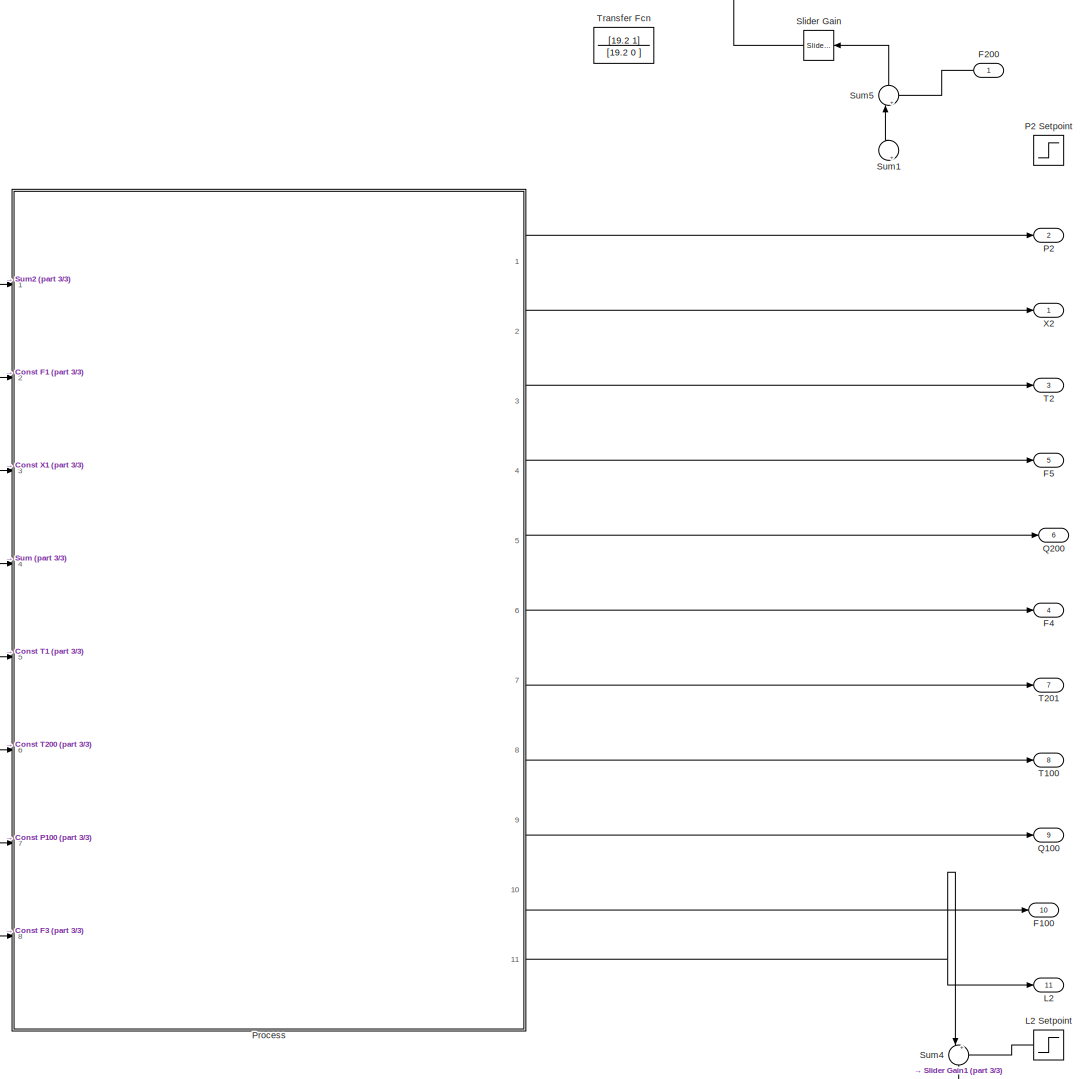
[diagram: root canvas - part 1/3, center side, full height]
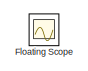
[diagram: root canvas - part 2/3, top right region]
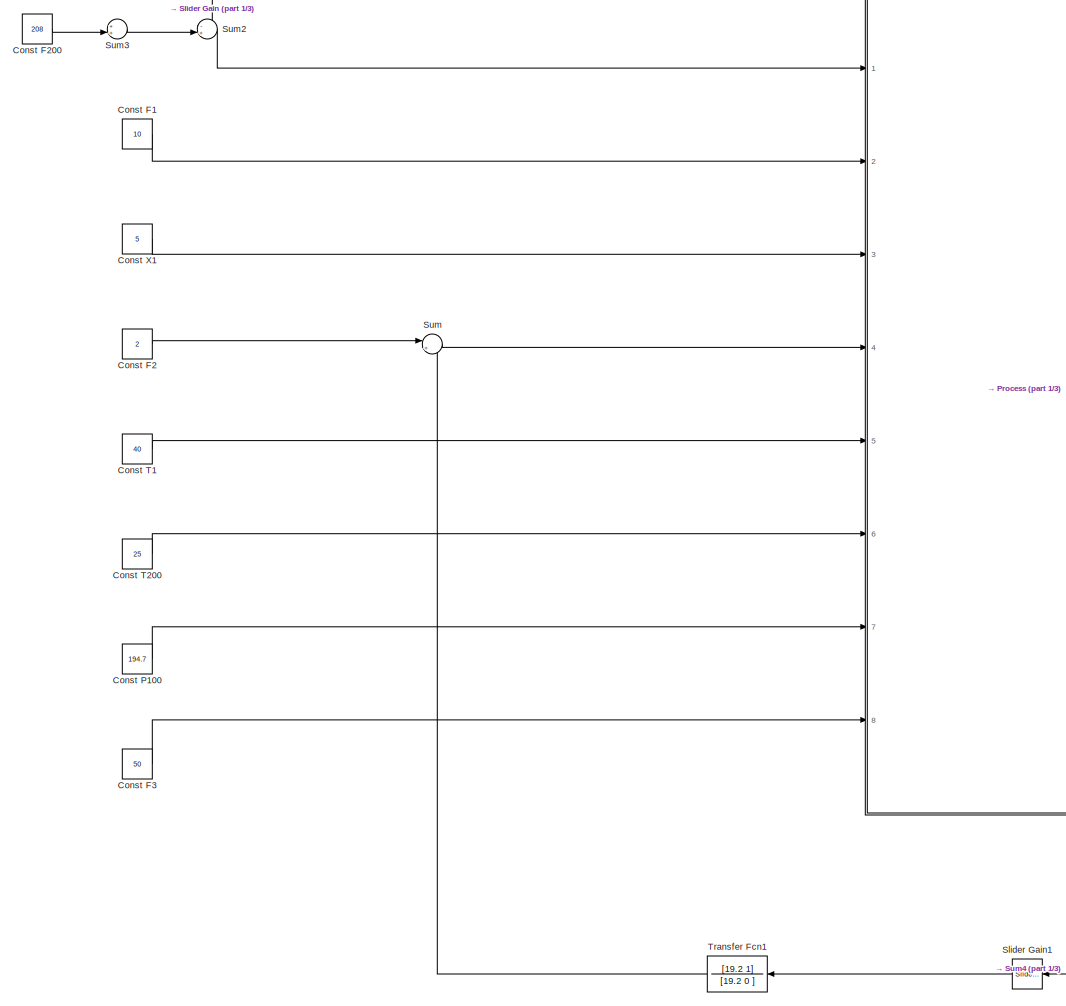
[diagram: root canvas - part 3/3, left side, full height]
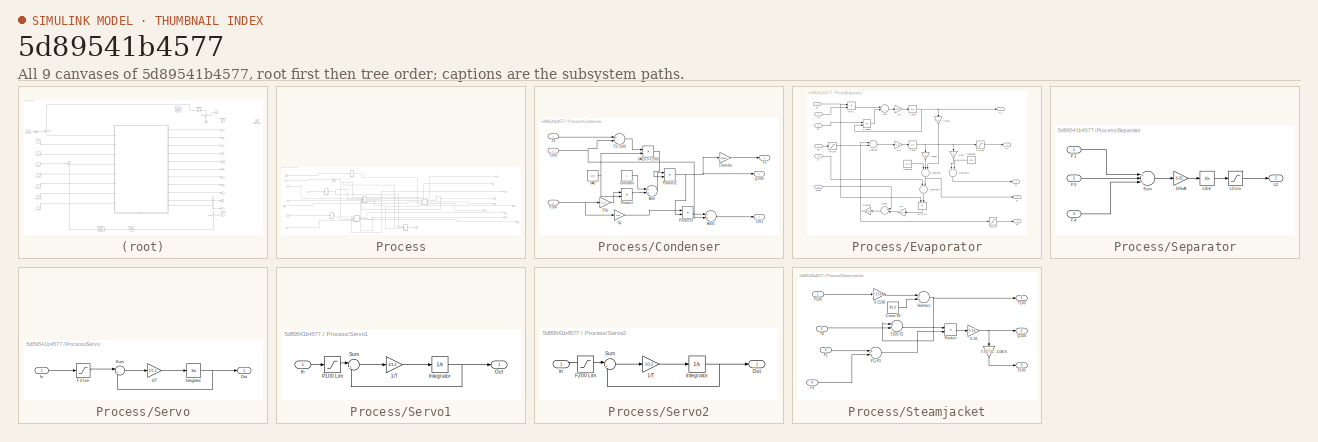
[diagram: thumbnail index - all 9 canvases of the model, root first then tree order]
MODEL slx_5d89541b4577
KIND model
CONFIG AbsTol = auto
CONFIG EnableMultiTasking = off
CONFIG FixedStep = auto
CONFIG MaxStep = auto
CONFIG MinStep = auto
CONFIG RelTol = 1e-3
CONFIG SampleTimeConstraint = Unconstrained
CONFIG Solver = VariableStepAuto
CONFIG SolverName = VariableStepAuto
CONFIG StartTime = 0.0
CONFIG StopTime = 200
BLOCK [Constant] Const F1
  Value = 10
BLOCK [Constant] Const F2
  Value = 2
BLOCK [Constant] Const F200
  Value = 208
BLOCK [Constant] Const F3
  Value = 50
BLOCK [Constant] Const P100
  Value = 194.7
BLOCK [Constant] Const T1
  Value = 40
BLOCK [Constant] Const T200
  Value = 25
BLOCK [Constant] Const X1
  Value = 5
BLOCK [Outport] F100
  IconDisplay = Port number
  Port = 10
BLOCK [Inport] F200
  IconDisplay = Port number
BLOCK [Outport] F4
  IconDisplay = Port number
  Port = 4
BLOCK [Outport] F5
  IconDisplay = Port number
  Port = 5
BLOCK [Scope] Floating Scope
  Floating = on
  NumInputPorts = 1
  Ports = []
  ScopeSpecificationString = Simulink.scopes.TimeScopeBlockCfg('CurrentConfiguration', extmgr.ConfigurationSet(extmgr.Configuration('Core','General UI',true),extmgr.Configuration('Core','Source UI',true),extmgr.Configuration('Sources','WiredSimulink',true),extmgr.Configuration('Visuals','Time Domain',true,'SerializedDisplays',{struct('MinYLimReal','0.99914','MaxYLimReal','1.0001','YLabelReal','','MinYLimMag','0.99914','MaxYLi...<+1431ch>
BLOCK [Outport] L2
  IconDisplay = Port number
  Port = 11
BLOCK [Step] L2 Setpoint
  Before = 1
  SampleTime = 0
BLOCK [Outport] P2
  IconDisplay = Port number
  Port = 2
BLOCK [Step] P2 Setpoint
  After = 50.5
  Before = 50.5
  SampleTime = 0
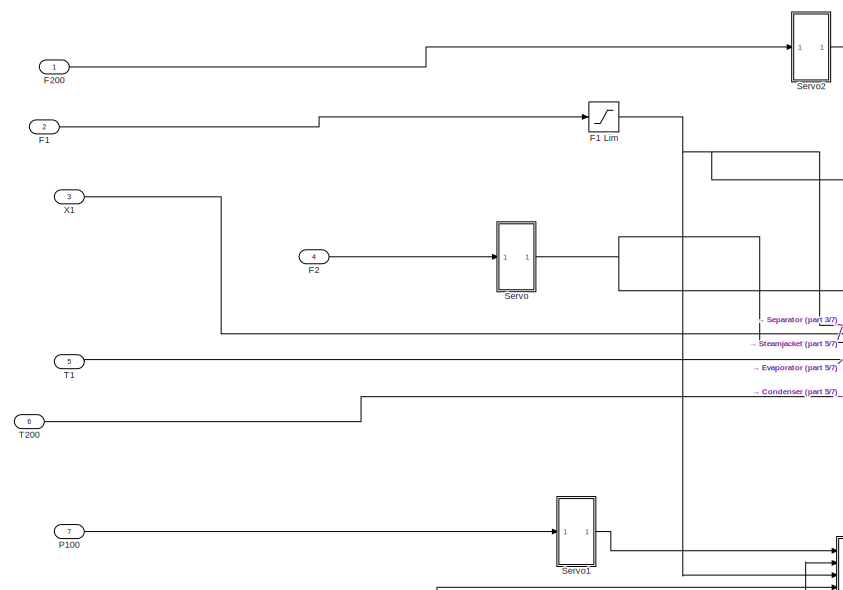
[diagram: Process - part 1/7, left side, full height]
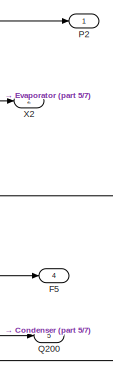
[diagram: Process - part 2/7, middle right region]
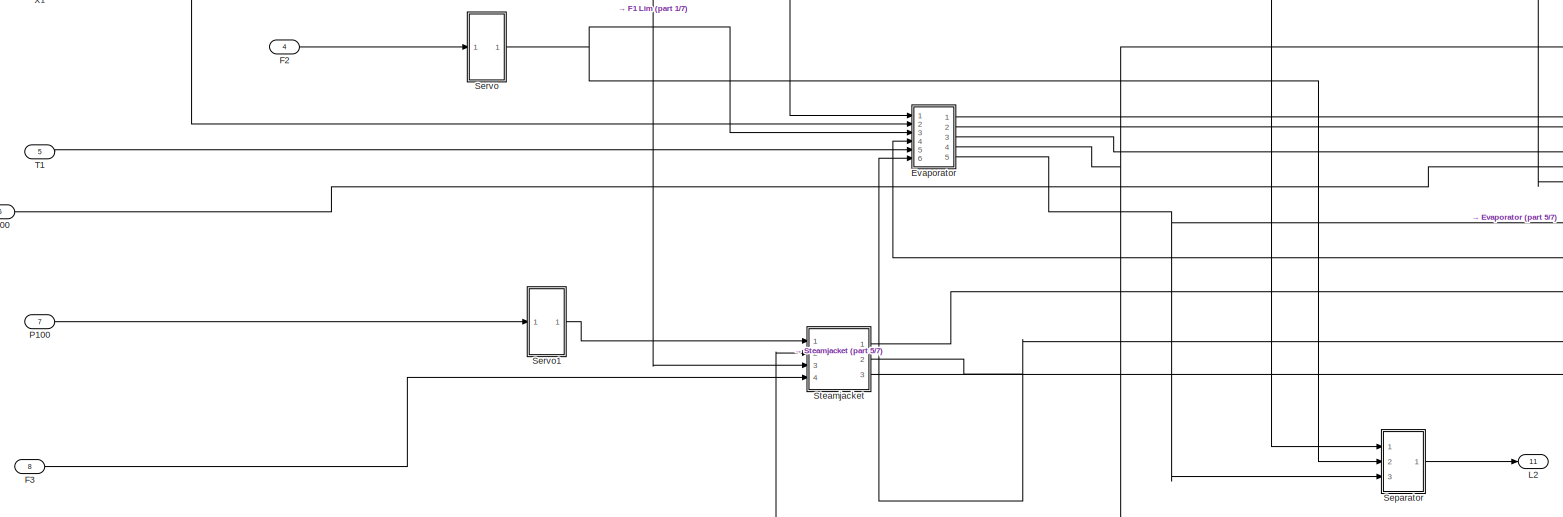
[diagram: Process - part 3/7, middle left region]
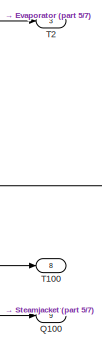
[diagram: Process - part 4/7, middle right region]
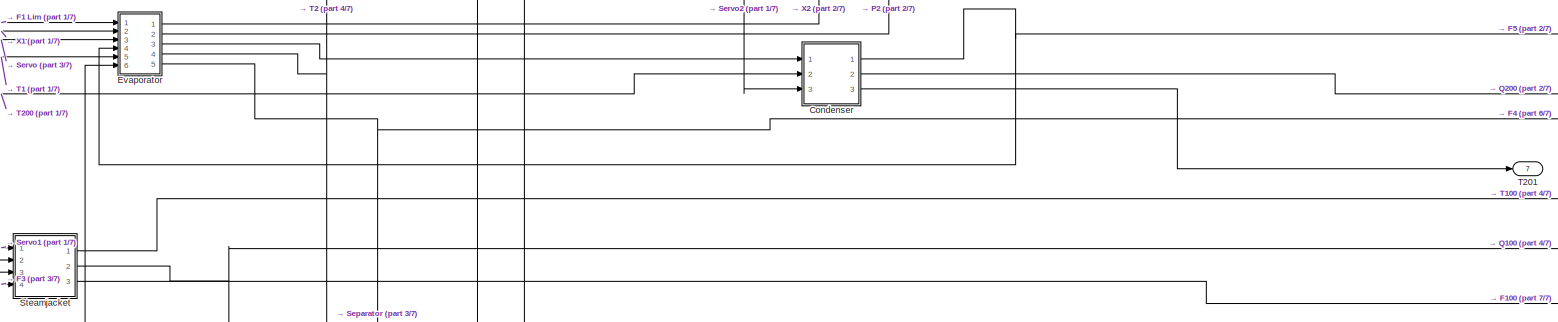
[diagram: Process - part 5/7, central region]
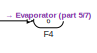
[diagram: Process - part 6/7, middle right region]
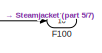
[diagram: Process - part 7/7, bottom right region]
BLOCK [SubSystem] Process
  Ports = [8, 11]
  RequestExecContextInheritance = off
  Variant = off
BLOCK [SubSystem] Process/Condenser
  Ports = [3, 3]
  RequestExecContextInheritance = off
  Variant = off
BLOCK [Gain] Process/Condenser/1//lamda
  Gain = 0.02597402597
  OutDataTypeStr = Inherit: Inherit via internal rule
  ParamDataTypeStr = Inherit: Inherit via internal rule
  SaturateOnIntegerOverflow = off
BLOCK [Gain] Process/Condenser/2Cp
  Gain = 0.14
  OutDataTypeStr = Inherit: Inherit via internal rule
  ParamDataTypeStr = Inherit: Inherit via internal rule
  SaturateOnIntegerOverflow = off
BLOCK [Sum] Process/Condenser/Add
  InputSameDT = off
  OutDataTypeStr = Inherit: Inherit via internal rule
  Ports = [2, 1]
  SaturateOnIntegerOverflow = off
BLOCK [Sum] Process/Condenser/Add1
  InputSameDT = off
  OutDataTypeStr = Inherit: Inherit via internal rule
  Ports = [2, 1]
  SaturateOnIntegerOverflow = off
BLOCK [Constant] Process/Condenser/Constant
BLOCK [Gain] Process/Condenser/Cp
  Gain = 0.07
  OutDataTypeStr = Inherit: Inherit via internal rule
  ParamDataTypeStr = Inherit: Inherit via internal rule
  SaturateOnIntegerOverflow = off
BLOCK [Inport] Process/Condenser/F200
  IconDisplay = Port number
  Port = 3
BLOCK [Outport] Process/Condenser/F5
  IconDisplay = Port number
BLOCK [Product] Process/Condenser/Product
  InputSameDT = off
  Inputs = /*
  OutDataTypeStr = Inherit: Inherit via internal rule
  Ports = [2, 1]
  RndMeth = Floor
  SaturateOnIntegerOverflow = off
BLOCK [Product] Process/Condenser/Product2
  InputSameDT = off
  Inputs = /*
  OutDataTypeStr = Inherit: Inherit via internal rule
  Ports = [2, 1]
  RndMeth = Floor
  SaturateOnIntegerOverflow = off
BLOCK [Product] Process/Condenser/Product3
  InputSameDT = off
  Inputs = /*
  OutDataTypeStr = Inherit: Inherit via internal rule
  Ports = [2, 1]
  RndMeth = Floor
  SaturateOnIntegerOverflow = off
BLOCK [Outport] Process/Condenser/Q200
  IconDisplay = Port number
  Port = 2
BLOCK [Inport] Process/Condenser/T200
  IconDisplay = Port number
  Port = 2
BLOCK [Outport] Process/Condenser/T201
  IconDisplay = Port number
  Port = 3
BLOCK [Inport] Process/Condenser/T3
  IconDisplay = Port number
BLOCK [Sum] Process/Condenser/T3-T200
  InputSameDT = off
  Inputs = +-
  OutDataTypeStr = Inherit: Inherit via internal rule
  Ports = [2, 1]
  SaturateOnIntegerOverflow = off
BLOCK [Constant] Process/Condenser/UA2
  Value = 6.84
BLOCK [Product] Process/Condenser/UA2(T3-T200)
  InputSameDT = off
  OutDataTypeStr = Inherit: Inherit via internal rule
  Ports = [2, 1]
  RndMeth = Floor
  SaturateOnIntegerOverflow = off
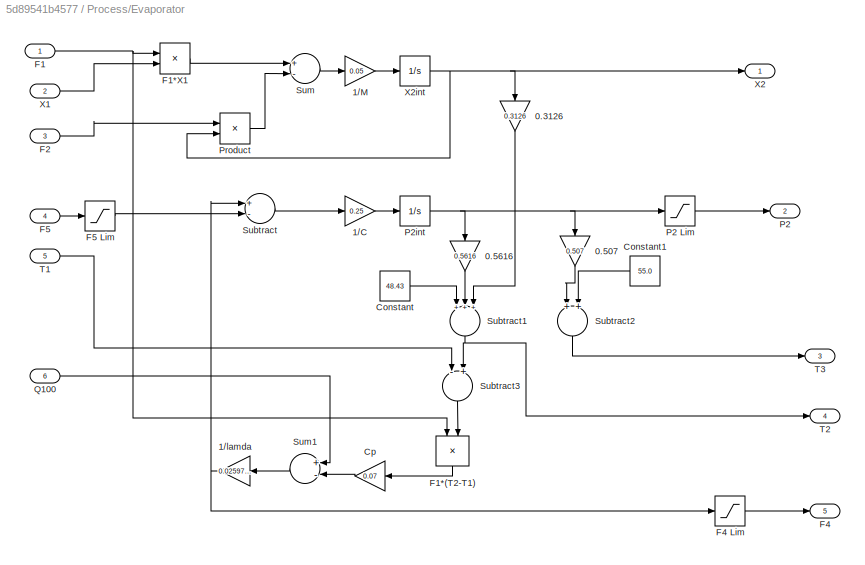
BLOCK [SubSystem] Process/Evaporator
  Ports = [6, 5]
  RequestExecContextInheritance = off
  Variant = off
BLOCK [Gain] Process/Evaporator/0.3126
  Gain = 0.3126
  OutDataTypeStr = Inherit: Inherit via internal rule
  ParamDataTypeStr = Inherit: Inherit via internal rule
  SaturateOnIntegerOverflow = off
BLOCK [Gain] Process/Evaporator/0.507
  Gain = 0.507
  OutDataTypeStr = Inherit: Inherit via internal rule
  ParamDataTypeStr = Inherit: Inherit via internal rule
  SaturateOnIntegerOverflow = off
BLOCK [Gain] Process/Evaporator/0.5616
  Gain = 0.5616
  OutDataTypeStr = Inherit: Inherit via internal rule
  ParamDataTypeStr = Inherit: Inherit via internal rule
  SaturateOnIntegerOverflow = off
BLOCK [Gain] Process/Evaporator/1//C
  Gain = 0.25
  OutDataTypeStr = Inherit: Inherit via internal rule
  ParamDataTypeStr = Inherit: Inherit via internal rule
  SaturateOnIntegerOverflow = off
BLOCK [Gain] Process/Evaporator/1//M
  Gain = 0.05
  OutDataTypeStr = Inherit: Inherit via internal rule
  ParamDataTypeStr = Inherit: Inherit via internal rule
  SaturateOnIntegerOverflow = off
BLOCK [Gain] Process/Evaporator/1//lamda
  Gain = 0.02597402597
  OutDataTypeStr = Inherit: Inherit via internal rule
  ParamDataTypeStr = Inherit: Inherit via internal rule
  SaturateOnIntegerOverflow = off
BLOCK [Constant] Process/Evaporator/Constant
  Value = 48.43
BLOCK [Constant] Process/Evaporator/Constant1
  Value = 55.0
BLOCK [Gain] Process/Evaporator/Cp
  Gain = 0.07
  OutDataTypeStr = Inherit: Inherit via internal rule
  ParamDataTypeStr = Inherit: Inherit via internal rule
  SaturateOnIntegerOverflow = off
BLOCK [Inport] Process/Evaporator/F1
  IconDisplay = Port number
BLOCK [Product] Process/Evaporator/F1*(T2-T1)
  InputSameDT = off
  OutDataTypeStr = Inherit: Inherit via internal rule
  Ports = [2, 1]
  RndMeth = Floor
  SaturateOnIntegerOverflow = off
BLOCK [Product] Process/Evaporator/F1*X1
  InputSameDT = off
  OutDataTypeStr = Inherit: Inherit via internal rule
  Ports = [2, 1]
  RndMeth = Floor
  SaturateOnIntegerOverflow = off
BLOCK [Inport] Process/Evaporator/F2
  IconDisplay = Port number
  Port = 3
BLOCK [Outport] Process/Evaporator/F4
  IconDisplay = Port number
  Port = 5
BLOCK [Saturate] Process/Evaporator/F4 Lim
  InputPortMap = u0
  LowerLimit = 0
  Ports = [1, 1]
  UpperLimit = 16
BLOCK [Inport] Process/Evaporator/F5
  IconDisplay = Port number
  Port = 4
BLOCK [Saturate] Process/Evaporator/F5 Lim
  InputPortMap = u0
  LowerLimit = 0
  Ports = [1, 1]
  UpperLimit = 16
BLOCK [Outport] Process/Evaporator/P2
  IconDisplay = Port number
  Port = 2
BLOCK [Saturate] Process/Evaporator/P2 Lim
  InputPortMap = u0
  LowerLimit = 0
  Ports = [1, 1]
  UpperLimit = 100
BLOCK [Integrator] Process/Evaporator/P2int
  InitialCondition = 50.5
  Ports = [1, 1]
BLOCK [Product] Process/Evaporator/Product
  InputSameDT = off
  OutDataTypeStr = Inherit: Inherit via internal rule
  Ports = [2, 1]
  RndMeth = Floor
  SaturateOnIntegerOverflow = off
BLOCK [Inport] Process/Evaporator/Q100
  IconDisplay = Port number
  Port = 6
BLOCK [Sum] Process/Evaporator/Subtract
  InputSameDT = off
  Inputs = +-
  OutDataTypeStr = Inherit: Inherit via internal rule
  Ports = [2, 1]
  SaturateOnIntegerOverflow = off
BLOCK [Sum] Process/Evaporator/Subtract1
  InputSameDT = off
  Inputs = +++
  OutDataTypeStr = Inherit: Inherit via internal rule
  Ports = [3, 1]
  SaturateOnIntegerOverflow = off
BLOCK [Sum] Process/Evaporator/Subtract2
  InputSameDT = off
  OutDataTypeStr = Inherit: Inherit via internal rule
  Ports = [2, 1]
  SaturateOnIntegerOverflow = off
BLOCK [Sum] Process/Evaporator/Subtract3
  InputSameDT = off
  Inputs = -+
  OutDataTypeStr = Inherit: Inherit via internal rule
  Ports = [2, 1]
  SaturateOnIntegerOverflow = off
BLOCK [Sum] Process/Evaporator/Sum
  InputSameDT = off
  Inputs = +-
  OutDataTypeStr = Inherit: Inherit via internal rule
  Ports = [2, 1]
  SaturateOnIntegerOverflow = off
BLOCK [Sum] Process/Evaporator/Sum1
  InputSameDT = off
  Inputs = +-
  OutDataTypeStr = Inherit: Inherit via internal rule
  Ports = [2, 1]
  SaturateOnIntegerOverflow = off
BLOCK [Inport] Process/Evaporator/T1
  IconDisplay = Port number
  Port = 5
BLOCK [Outport] Process/Evaporator/T2
  IconDisplay = Port number
  Port = 4
BLOCK [Outport] Process/Evaporator/T3
  IconDisplay = Port number
  Port = 3
BLOCK [Inport] Process/Evaporator/X1
  IconDisplay = Port number
  Port = 2
BLOCK [Outport] Process/Evaporator/X2
  IconDisplay = Port number
BLOCK [Integrator] Process/Evaporator/X2int
  InitialCondition = 25
  Ports = [1, 1]
BLOCK [Inport] Process/F1
  IconDisplay = Port number
  Port = 2
BLOCK [Saturate] Process/F1 Lim
  InputPortMap = u0
  LowerLimit = 0
  Ports = [1, 1]
  UpperLimit = 20
BLOCK [Outport] Process/F100
  IconDisplay = Port number
  Port = 10
BLOCK [Inport] Process/F2
  IconDisplay = Port number
  Port = 4
BLOCK [Inport] Process/F200
  IconDisplay = Port number
BLOCK [Inport] Process/F3
  IconDisplay = Port number
  Port = 8
BLOCK [Outport] Process/F4
  IconDisplay = Port number
  Port = 6
BLOCK [Outport] Process/F5
  IconDisplay = Port number
  Port = 4
BLOCK [Outport] Process/L2
  IconDisplay = Port number
  Port = 11
BLOCK [Inport] Process/P100
  IconDisplay = Port number
  Port = 7
BLOCK [Outport] Process/P2
  IconDisplay = Port number
BLOCK [Outport] Process/Q100
  IconDisplay = Port number
  Port = 9
BLOCK [Outport] Process/Q200
  IconDisplay = Port number
  Port = 5
BLOCK [SubSystem] Process/Separator
  Ports = [3, 1]
  RequestExecContextInheritance = off
  Variant = off
BLOCK [Gain] Process/Separator/1//rhoA
  Gain = 0.05
  OutDataTypeStr = Inherit: Inherit via internal rule
  ParamDataTypeStr = Inherit: Inherit via internal rule
  SaturateOnIntegerOverflow = off
BLOCK [Inport] Process/Separator/F1
  IconDisplay = Port number
BLOCK [Inport] Process/Separator/F2
  IconDisplay = Port number
  Port = 2
BLOCK [Inport] Process/Separator/F4
  IconDisplay = Port number
  Port = 3
BLOCK [Outport] Process/Separator/L2
  IconDisplay = Port number
BLOCK [Saturate] Process/Separator/L2 Lim
  InputPortMap = u0
  LowerLimit = 0
  Ports = [1, 1]
  UpperLimit = 2
BLOCK [Integrator] Process/Separator/L2int
  InitialCondition = 1
  Ports = [1, 1]
BLOCK [Sum] Process/Separator/Sum
  InputSameDT = off
  Inputs = +--
  OutDataTypeStr = Inherit: Inherit via internal rule
  Ports = [3, 1]
  SaturateOnIntegerOverflow = off
BLOCK [SubSystem] Process/Servo
  Ports = [1, 1]
  RequestExecContextInheritance = off
  Variant = off
BLOCK [Gain] Process/Servo/1//T
  Gain = 1/1.2
  OutDataTypeStr = Inherit: Inherit via internal rule
  ParamDataTypeStr = Inherit: Inherit via internal rule
  SaturateOnIntegerOverflow = off
BLOCK [Saturate] Process/Servo/F2 Lim
  InputPortMap = u0
  LowerLimit = 0
  Ports = [1, 1]
  UpperLimit = 4
BLOCK [Inport] Process/Servo/In
  IconDisplay = Port number
BLOCK [Integrator] Process/Servo/Integrator
  InitialCondition = 2
  Ports = [1, 1]
BLOCK [Outport] Process/Servo/Out
  IconDisplay = Port number
BLOCK [Sum] Process/Servo/Sum
  IconShape = round
  InputSameDT = off
  Inputs = |+-
  OutDataTypeStr = Inherit: Inherit via internal rule
  Ports = [2, 1]
  SaturateOnIntegerOverflow = off
BLOCK [SubSystem] Process/Servo1
  Ports = [1, 1]
  RequestExecContextInheritance = off
  Variant = off
BLOCK [Gain] Process/Servo1/1//T
  Gain = 1/1.2
  OutDataTypeStr = Inherit: Inherit via internal rule
  ParamDataTypeStr = Inherit: Inherit via internal rule
  SaturateOnIntegerOverflow = off
BLOCK [Inport] Process/Servo1/In
  IconDisplay = Port number
BLOCK [Integrator] Process/Servo1/Integrator
  InitialCondition = 194.7
  Ports = [1, 1]
BLOCK [Outport] Process/Servo1/Out
  IconDisplay = Port number
BLOCK [Saturate] Process/Servo1/P100 Lim
  InputPortMap = u0
  LowerLimit = 0
  Ports = [1, 1]
  UpperLimit = 400
BLOCK [Sum] Process/Servo1/Sum
  IconShape = round
  InputSameDT = off
  Inputs = |+-
  OutDataTypeStr = Inherit: Inherit via internal rule
  Ports = [2, 1]
  SaturateOnIntegerOverflow = off
BLOCK [SubSystem] Process/Servo2
  Ports = [1, 1]
  RequestExecContextInheritance = off
  Variant = off
BLOCK [Gain] Process/Servo2/1//T
  Gain = 1/1.2
  OutDataTypeStr = Inherit: Inherit via internal rule
  ParamDataTypeStr = Inherit: Inherit via internal rule
  SaturateOnIntegerOverflow = off
BLOCK [Saturate] Process/Servo2/F200 Lim
  InputPortMap = u0
  LowerLimit = 0
  Ports = [1, 1]
  UpperLimit = 416
BLOCK [Inport] Process/Servo2/In
  IconDisplay = Port number
BLOCK [Integrator] Process/Servo2/Integrator
  InitialCondition = 208
  Ports = [1, 1]
BLOCK [Outport] Process/Servo2/Out
  IconDisplay = Port number
BLOCK [Sum] Process/Servo2/Sum
  IconShape = round
  InputSameDT = off
  Inputs = |+-
  OutDataTypeStr = Inherit: Inherit via internal rule
  Ports = [2, 1]
  SaturateOnIntegerOverflow = off
BLOCK [SubSystem] Process/Steamjacket
  Ports = [4, 3]
  RequestExecContextInheritance = off
  Variant = off
BLOCK [Gain] Process/Steamjacket/0.1538
  Gain = 0.1538
  OutDataTypeStr = Inherit: Inherit via internal rule
  ParamDataTypeStr = Inherit: Inherit via internal rule
  SaturateOnIntegerOverflow = off
BLOCK [Gain] Process/Steamjacket/0.16
  Gain = 0.16
  OutDataTypeStr = Inherit: Inherit via internal rule
  ParamDataTypeStr = Inherit: Inherit via internal rule
  SaturateOnIntegerOverflow = off
BLOCK [Gain] Process/Steamjacket/1//36.6
  Gain = 0.02732240437
  OutDataTypeStr = Inherit: Inherit via internal rule
  ParamDataTypeStr = Inherit: Inherit via internal rule
  SaturateOnIntegerOverflow = off
BLOCK [Constant] Process/Steamjacket/Const 90
  Value = 90.0
BLOCK [Inport] Process/Steamjacket/F1
  IconDisplay = Port number
  Port = 3
BLOCK [Sum] Process/Steamjacket/F1+F3
  InputSameDT = off
  OutDataTypeStr = Inherit: Inherit via internal rule
  Ports = [2, 1]
  SaturateOnIntegerOverflow = off
BLOCK [Outport] Process/Steamjacket/F100
  IconDisplay = Port number
  Port = 3
BLOCK [Inport] Process/Steamjacket/F3
  IconDisplay = Port number
  Port = 4
BLOCK [Inport] Process/Steamjacket/P100
  IconDisplay = Port number
BLOCK [Product] Process/Steamjacket/Product
  InputSameDT = off
  OutDataTypeStr = Inherit: Inherit via internal rule
  Ports = [2, 1]
  RndMeth = Floor
  SaturateOnIntegerOverflow = off
BLOCK [Outport] Process/Steamjacket/Q100
  IconDisplay = Port number
  Port = 2
BLOCK [Sum] Process/Steamjacket/Subtract
  InputSameDT = off
  OutDataTypeStr = Inherit: Inherit via internal rule
  Ports = [2, 1]
  SaturateOnIntegerOverflow = off
BLOCK [Outport] Process/Steamjacket/T100
  IconDisplay = Port number
BLOCK [Sum] Process/Steamjacket/T100-T2
  InputSameDT = off
  Inputs = +-
  OutDataTypeStr = Inherit: Inherit via internal rule
  Ports = [2, 1]
  SaturateOnIntegerOverflow = off
BLOCK [Inport] Process/Steamjacket/T2
  IconDisplay = Port number
  Port = 2
BLOCK [Inport] Process/T1
  IconDisplay = Port number
  Port = 5
BLOCK [Outport] Process/T100
  IconDisplay = Port number
  Port = 8
BLOCK [Outport] Process/T2
  IconDisplay = Port number
  Port = 3
BLOCK [Inport] Process/T200
  IconDisplay = Port number
  Port = 6
BLOCK [Outport] Process/T201
  IconDisplay = Port number
  Port = 7
BLOCK [Inport] Process/X1
  IconDisplay = Port number
  Port = 3
BLOCK [Outport] Process/X2
  IconDisplay = Port number
  Port = 2
BLOCK [Outport] Q100
  IconDisplay = Port number
  Port = 9
BLOCK [Outport] Q200
  IconDisplay = Port number
  Port = 6
BLOCK [Reference] Slider Gain  REF=simulink/Math
Operations/Slider
Gain
  Ports = [1, 1]
  SourceBlock = simulink/Math\nOperations/Slider\nGain
  SourceProductBaseCode = SL
  SourceProductName = Simulink
  SourceType = Slider Gain
BLOCK [Reference] Slider Gain1  REF=simulink/Math
Operations/Slider
Gain
  Ports = [1, 1]
  SourceBlock = simulink/Math\nOperations/Slider\nGain
  SourceProductBaseCode = SL
  SourceProductName = Simulink
  SourceType = Slider Gain
BLOCK [Sum] Sum
  IconShape = round
  InputSameDT = off
  Inputs = |+-
  OutDataTypeStr = Inherit: Inherit via internal rule
  Ports = [2, 1]
  SaturateOnIntegerOverflow = off
BLOCK [Sum] Sum1
  IconShape = round
  InputSameDT = off
  Inputs = |+-
  OutDataTypeStr = Inherit: Inherit via internal rule
  Ports = [2, 1]
  SaturateOnIntegerOverflow = off
BLOCK [Sum] Sum2
  IconShape = round
  InputSameDT = off
  Inputs = -+|
  OutDataTypeStr = Inherit: Inherit via internal rule
  Ports = [2, 1]
  SaturateOnIntegerOverflow = off
BLOCK [Sum] Sum3
  IconShape = round
  InputSameDT = off
  Inputs = ++|
  OutDataTypeStr = Inherit: Inherit via internal rule
  Ports = [2, 1]
  SaturateOnIntegerOverflow = off
BLOCK [Sum] Sum4
  IconShape = round
  InputSameDT = off
  Inputs = |+-
  OutDataTypeStr = Inherit: Inherit via internal rule
  Ports = [2, 1]
  SaturateOnIntegerOverflow = off
BLOCK [Sum] Sum5
  IconShape = round
  InputSameDT = off
  Inputs = |++
  OutDataTypeStr = Inherit: Inherit via internal rule
  Ports = [2, 1]
  SaturateOnIntegerOverflow = off
BLOCK [Outport] T100
  IconDisplay = Port number
  Port = 8
BLOCK [Outport] T2
  IconDisplay = Port number
  Port = 3
BLOCK [Outport] T201
  IconDisplay = Port number
  Port = 7
BLOCK [TransferFcn] Transfer Fcn
  Denominator = [19.2 0 ]
  Numerator = [19.2 1]
BLOCK [TransferFcn] Transfer Fcn1
  Denominator = [19.2 0 ]
  Numerator = [19.2 1]
BLOCK [Outport] X2
  IconDisplay = Port number
LINE Const F1:1 -> Process:2
LINE Const F200:1 -> Sum3:2
LINE Const F2:1 -> Sum:1
LINE Const F3:1 -> Process:8
LINE Const P100:1 -> Process:7
LINE Const T1:1 -> Process:5
LINE Const T200:1 -> Process:6
LINE Const X1:1 -> Process:3
LINE F200:1 -> Sum5:2
LINE L2 Setpoint:1 -> Sum4:2
LINE Process/Condenser/1//lamda:1 -> Process/Condenser/F5:1
LINE Process/Condenser/2Cp:1 -> Process/Condenser/Product:1
LINE Process/Condenser/Add1:1 -> Process/Condenser/T201:1
LINE Process/Condenser/Add:1 -> Process/Condenser/Product2:1
LINE Process/Condenser/Constant:1 -> Process/Condenser/Add:1
LINE Process/Condenser/Cp:1 -> Process/Condenser/Product3:1
NET Process/Condenser/F200:1 -> Process/Condenser/2Cp:1, Process/Condenser/Cp:1
NET Process/Condenser/Product2:1 -> Process/Condenser/1//lamda:1, Process/Condenser/Product3:2, Process/Condenser/Q200:1
LINE Process/Condenser/Product3:1 -> Process/Condenser/Add1:1
LINE Process/Condenser/Product:1 -> Process/Condenser/Add:2
NET Process/Condenser/T200:1 -> Process/Condenser/Add1:2, Process/Condenser/T3-T200:2
LINE Process/Condenser/T3-T200:1 -> Process/Condenser/UA2(T3-T200):1
LINE Process/Condenser/T3:1 -> Process/Condenser/T3-T200:1
LINE Process/Condenser/UA2(T3-T200):1 -> Process/Condenser/Product2:2
NET Process/Condenser/UA2:1 -> Process/Condenser/Product:2, Process/Condenser/UA2(T3-T200):2
NET Process/Condenser:1 -> Process/Evaporator:4, Process/F5:1
LINE Process/Condenser:2 -> Process/Q200:1
LINE Process/Condenser:3 -> Process/T201:1
LINE Process/Evaporator/0.3126:1 -> Process/Evaporator/Subtract1:3
LINE Process/Evaporator/0.507:1 -> Process/Evaporator/Subtract2:1
LINE Process/Evaporator/0.5616:1 -> Process/Evaporator/Subtract1:2
LINE Process/Evaporator/1//C:1 -> Process/Evaporator/P2int:1
LINE Process/Evaporator/1//M:1 -> Process/Evaporator/X2int:1
NET Process/Evaporator/1//lamda:1 -> Process/Evaporator/F4 Lim:1, Process/Evaporator/Subtract:1
LINE Process/Evaporator/Constant1:1 -> Process/Evaporator/Subtract2:2
LINE Process/Evaporator/Constant:1 -> Process/Evaporator/Subtract1:1
LINE Process/Evaporator/Cp:1 -> Process/Evaporator/Sum1:2
LINE Process/Evaporator/F1*(T2-T1):1 -> Process/Evaporator/Cp:1
LINE Process/Evaporator/F1*X1:1 -> Process/Evaporator/Sum:1
NET Process/Evaporator/F1:1 -> Process/Evaporator/F1*(T2-T1):1, Process/Evaporator/F1*X1:1
LINE Process/Evaporator/F2:1 -> Process/Evaporator/Product:1
LINE Process/Evaporator/F4 Lim:1 -> Process/Evaporator/F4:1
LINE Process/Evaporator/F5 Lim:1 -> Process/Evaporator/Subtract:2
LINE Process/Evaporator/F5:1 -> Process/Evaporator/F5 Lim:1
LINE Process/Evaporator/P2 Lim:1 -> Process/Evaporator/P2:1
NET Process/Evaporator/P2int:1 -> Process/Evaporator/0.507:1, Process/Evaporator/0.5616:1, Process/Evaporator/P2 Lim:1
LINE Process/Evaporator/Product:1 -> Process/Evaporator/Sum:2
LINE Process/Evaporator/Q100:1 -> Process/Evaporator/Sum1:1
NET Process/Evaporator/Subtract1:1 -> Process/Evaporator/Subtract3:2, Process/Evaporator/T2:1
LINE Process/Evaporator/Subtract2:1 -> Process/Evaporator/T3:1
LINE Process/Evaporator/Subtract3:1 -> Process/Evaporator/F1*(T2-T1):2
LINE Process/Evaporator/Subtract:1 -> Process/Evaporator/1//C:1
LINE Process/Evaporator/Sum1:1 -> Process/Evaporator/1//lamda:1
LINE Process/Evaporator/Sum:1 -> Process/Evaporator/1//M:1
LINE Process/Evaporator/T1:1 -> Process/Evaporator/Subtract3:1
LINE Process/Evaporator/X1:1 -> Process/Evaporator/F1*X1:2
NET Process/Evaporator/X2int:1 -> Process/Evaporator/0.3126:1, Process/Evaporator/Product:2, Process/Evaporator/X2:1
LINE Process/Evaporator:1 -> Process/X2:1
LINE Process/Evaporator:2 -> Process/P2:1
LINE Process/Evaporator:3 -> Process/Condenser:1
NET Process/Evaporator:4 -> Process/Steamjacket:2, Process/T2:1
NET Process/Evaporator:5 -> Process/F4:1, Process/Separator:3
NET Process/F1 Lim:1 -> Process/Evaporator:1, Process/Separator:1, Process/Steamjacket:3
LINE Process/F1:1 -> Process/F1 Lim:1
LINE Process/F200:1 -> Process/Servo2:1
LINE Process/F2:1 -> Process/Servo:1
LINE Process/F3:1 -> Process/Steamjacket:4
LINE Process/P100:1 -> Process/Servo1:1
LINE Process/Separator/1//rhoA:1 -> Process/Separator/L2int:1
LINE Process/Separator/F1:1 -> Process/Separator/Sum:1
LINE Process/Separator/F2:1 -> Process/Separator/Sum:2
LINE Process/Separator/F4:1 -> Process/Separator/Sum:3
LINE Process/Separator/L2 Lim:1 -> Process/Separator/L2:1
LINE Process/Separator/L2int:1 -> Process/Separator/L2 Lim:1
LINE Process/Separator/Sum:1 -> Process/Separator/1//rhoA:1
LINE Process/Separator:1 -> Process/L2:1
LINE Process/Servo/1//T:1 -> Process/Servo/Integrator:1
LINE Process/Servo/F2 Lim:1 -> Process/Servo/Sum:1
LINE Process/Servo/In:1 -> Process/Servo/F2 Lim:1
NET Process/Servo/Integrator:1 -> Process/Servo/Out:1, Process/Servo/Sum:2
LINE Process/Servo/Sum:1 -> Process/Servo/1//T:1
LINE Process/Servo1/1//T:1 -> Process/Servo1/Integrator:1
LINE Process/Servo1/In:1 -> Process/Servo1/P100 Lim:1
NET Process/Servo1/Integrator:1 -> Process/Servo1/Out:1, Process/Servo1/Sum:2
LINE Process/Servo1/P100 Lim:1 -> Process/Servo1/Sum:1
LINE Process/Servo1/Sum:1 -> Process/Servo1/1//T:1
LINE Process/Servo1:1 -> Process/Steamjacket:1
LINE Process/Servo2/1//T:1 -> Process/Servo2/Integrator:1
LINE Process/Servo2/In:1 -> Process/Servo2/Sum:1
NET Process/Servo2/Integrator:1 -> Process/Servo2/Out:1, Process/Servo2/Sum:2
LINE Process/Servo2/Sum:1 -> Process/Servo2/1//T:1
LINE Process/Servo2:1 -> Process/Condenser:3
NET Process/Servo:1 -> Process/Evaporator:3, Process/Separator:2
LINE Process/Steamjacket/0.1538:1 -> Process/Steamjacket/Subtract:1
NET Process/Steamjacket/0.16:1 -> Process/Steamjacket/1//36.6:1, Process/Steamjacket/Q100:1
LINE Process/Steamjacket/1//36.6:1 -> Process/Steamjacket/F100:1
LINE Process/Steamjacket/Const 90:1 -> Process/Steamjacket/Subtract:2
LINE Process/Steamjacket/F1+F3:1 -> Process/Steamjacket/Product:2
LINE Process/Steamjacket/F1:1 -> Process/Steamjacket/F1+F3:1
LINE Process/Steamjacket/F3:1 -> Process/Steamjacket/F1+F3:2
LINE Process/Steamjacket/P100:1 -> Process/Steamjacket/0.1538:1
LINE Process/Steamjacket/Product:1 -> Process/Steamjacket/0.16:1
NET Process/Steamjacket/Subtract:1 -> Process/Steamjacket/T100-T2:1, Process/Steamjacket/T100:1
LINE Process/Steamjacket/T100-T2:1 -> Process/Steamjacket/Product:1
LINE Process/Steamjacket/T2:1 -> Process/Steamjacket/T100-T2:2
LINE Process/Steamjacket:1 -> Process/T100:1
NET Process/Steamjacket:2 -> Process/Evaporator:6, Process/Q100:1
LINE Process/Steamjacket:3 -> Process/F100:1
LINE Process/T1:1 -> Process/Evaporator:5
LINE Process/T200:1 -> Process/Condenser:2
LINE Process/X1:1 -> Process/Evaporator:2
LINE Process:1 -> P2:1
LINE Process:10 -> F100:1
NET Process:11 -> L2:1, Sum4:1
LINE Process:2 -> X2:1
LINE Process:3 -> T2:1
LINE Process:4 -> F5:1
LINE Process:5 -> Q200:1
LINE Process:6 -> F4:1
LINE Process:7 -> T201:1
LINE Process:8 -> T100:1
LINE Process:9 -> Q100:1
LINE Slider Gain1:1 -> Transfer Fcn1:1
LINE Slider Gain:1 -> Sum2:1
LINE Sum1:1 -> Sum5:1
LINE Sum2:1 -> Process:1
LINE Sum3:1 -> Sum2:2
LINE Sum4:1 -> Slider Gain1:1
LINE Sum5:1 -> Slider Gain:1
LINE Sum:1 -> Process:4
LINE Transfer Fcn1:1 -> Sum:2
note: NET lines group one-source signal fan-out (src -> all destinations, sorted); 1:1 wires keep LINE
